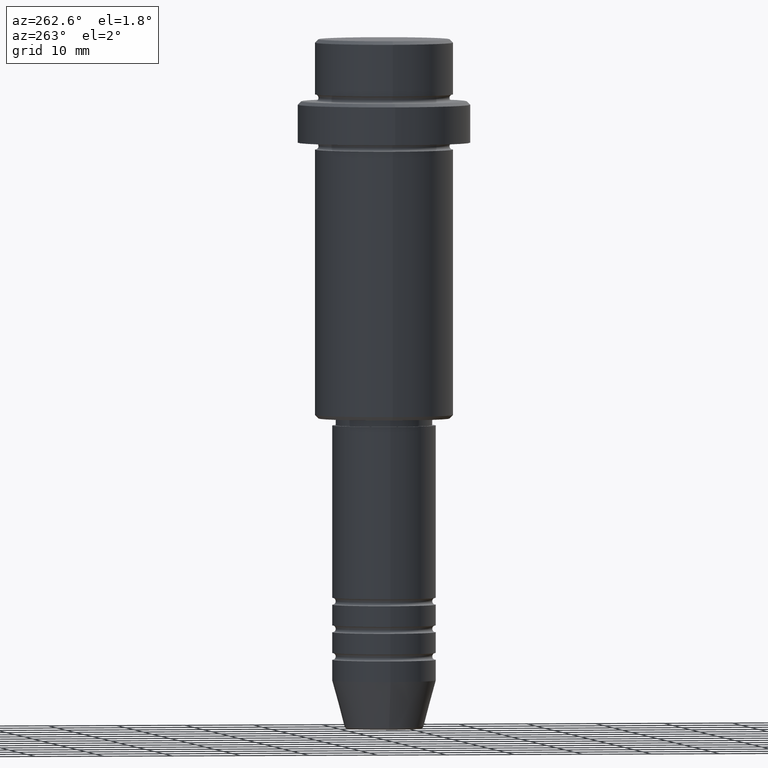
[diagram: clean part render]
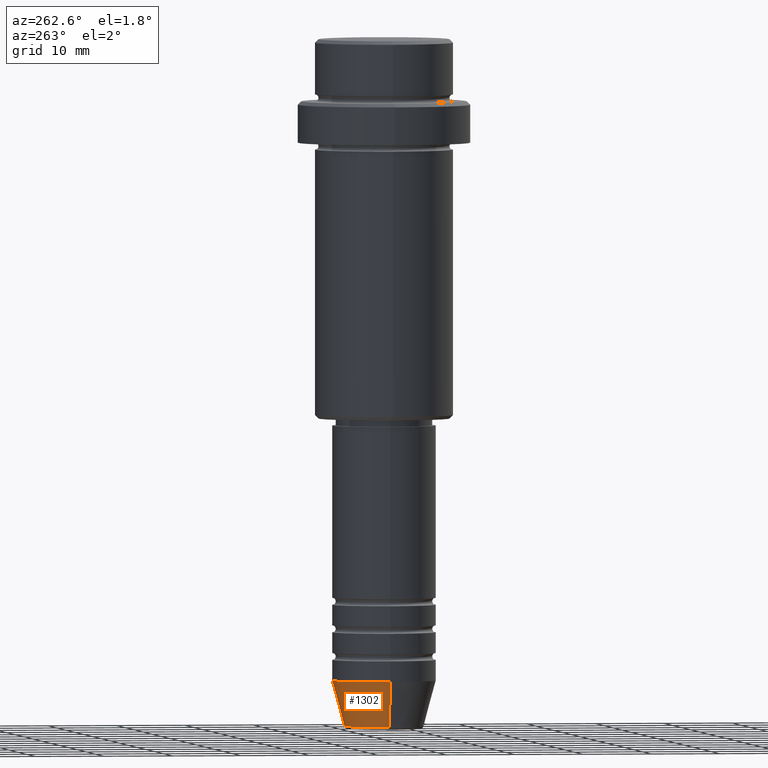
[diagram: same view with one face highlighted and labeled with its STEP entity id]
A machine part, auxiliary view. The second image highlights one B-rep face of the part: STEP entity #1302.
In plain terms, the highlighted conical surface has half-angle 15 deg.
Its self-contained STEP definition (entity closure, byte-faithful):
#30 = DIRECTION ( 'NONE',  ( -0.000000000000000000, -0.000000000000000000, 1.000000000000000000 ) ) ;
#53 = CARTESIAN_POINT ( 'NONE',  ( 5.723655072137191269, 0.000000000000000000, -99.62940952255127058 ) ) ;
#59 = DIRECTION ( 'NONE',  ( 0.2588190451025213501, 0.000000000000000000, 0.9659258262890680902 ) ) ;
#87 = CARTESIAN_POINT ( 'NONE',  ( 7.500000000000000000, 0.000000000000000000, -93.00000000000000000 ) ) ;
#186 = CARTESIAN_POINT ( 'NONE',  ( -5.723655072137190380, 8.097153428560735915E-16, -99.62940952255127058 ) ) ;
#202 = DIRECTION ( 'NONE',  ( 1.000000000000000000, 0.000000000000000000, 0.000000000000000000 ) ) ;
#220 = CARTESIAN_POINT ( 'NONE',  ( -7.500000000000000000, 9.184850993605147944E-16, -93.00000000000000000 ) ) ;
#260 = VERTEX_POINT ( 'NONE', #186 ) ;
#320 = CIRCLE ( 'NONE', #1133, 5.723655072137191269 ) ;
#357 = DIRECTION ( 'NONE',  ( -0.000000000000000000, -0.000000000000000000, 1.000000000000000000 ) ) ;
#361 = ORIENTED_EDGE ( 'NONE', *, *, #1274, .T. ) ;
#372 = CIRCLE ( 'NONE', #440, 7.500000000000000000 ) ;
#435 = DIRECTION ( 'NONE',  ( 1.000000000000000000, 0.000000000000000000, 0.000000000000000000 ) ) ;
#440 = AXIS2_PLACEMENT_3D ( 'NONE', #534, #1076, #202 ) ;
#456 = DIRECTION ( 'NONE',  ( 1.000000000000000000, 0.000000000000000000, 0.000000000000000000 ) ) ;
#518 = CARTESIAN_POINT ( 'NONE',  ( -7.500000000000000000, 9.184850993605147944E-16, -93.00000000000000000 ) ) ;
#534 = CARTESIAN_POINT ( 'NONE',  ( 0.000000000000000000, 0.000000000000000000, -93.00000000000000000 ) ) ;
#575 = CARTESIAN_POINT ( 'NONE',  ( 0.000000000000000000, 0.000000000000000000, -99.62940952255127058 ) ) ;
#607 = AXIS2_PLACEMENT_3D ( 'NONE', #780, #30, #435 ) ;
#611 = CARTESIAN_POINT ( 'NONE',  ( 7.500000000000000000, 0.000000000000000000, -93.00000000000000000 ) ) ;
#714 = EDGE_CURVE ( 'NONE', #260, #1228, #1403, .T. ) ;
#780 = CARTESIAN_POINT ( 'NONE',  ( 0.000000000000000000, 0.000000000000000000, -93.00000000000000000 ) ) ;
#909 = VERTEX_POINT ( 'NONE', #53 ) ;
#997 = VECTOR ( 'NONE', #59, 1000.000000000000000 ) ;
#1022 = EDGE_LOOP ( 'NONE', ( #361, #1340, #1126, #1186 ) ) ;
#1034 = EDGE_CURVE ( 'NONE', #909, #1058, #1153, .T. ) ;
#1058 = VERTEX_POINT ( 'NONE', #87 ) ;
#1076 = DIRECTION ( 'NONE',  ( -0.000000000000000000, -0.000000000000000000, 1.000000000000000000 ) ) ;
#1115 = EDGE_CURVE ( 'NONE', #1058, #1228, #372, .T. ) ;
#1126 = ORIENTED_EDGE ( 'NONE', *, *, #1115, .F. ) ;
#1133 = AXIS2_PLACEMENT_3D ( 'NONE', #575, #357, #456 ) ;
#1153 = LINE ( 'NONE', #611, #997 ) ;
#1175 = VECTOR ( 'NONE', #1205, 1000.000000000000000 ) ;
#1186 = ORIENTED_EDGE ( 'NONE', *, *, #1034, .F. ) ;
#1205 = DIRECTION ( 'NONE',  ( -0.2588190451025213501, 3.169619151431772337E-17, 0.9659258262890680902 ) ) ;
#1222 = CONICAL_SURFACE ( 'NONE', #607, 7.500000000000000000, 0.2617993877991500740 ) ;
#1228 = VERTEX_POINT ( 'NONE', #220 ) ;
#1230 = FACE_OUTER_BOUND ( 'NONE', #1022, .T. ) ;
#1274 = EDGE_CURVE ( 'NONE', #909, #260, #320, .T. ) ;
#1302 = ADVANCED_FACE ( 'NONE', ( #1230 ), #1222, .T. ) ;
#1340 = ORIENTED_EDGE ( 'NONE', *, *, #714, .T. ) ;
#1403 = LINE ( 'NONE', #518, #1175 ) ;